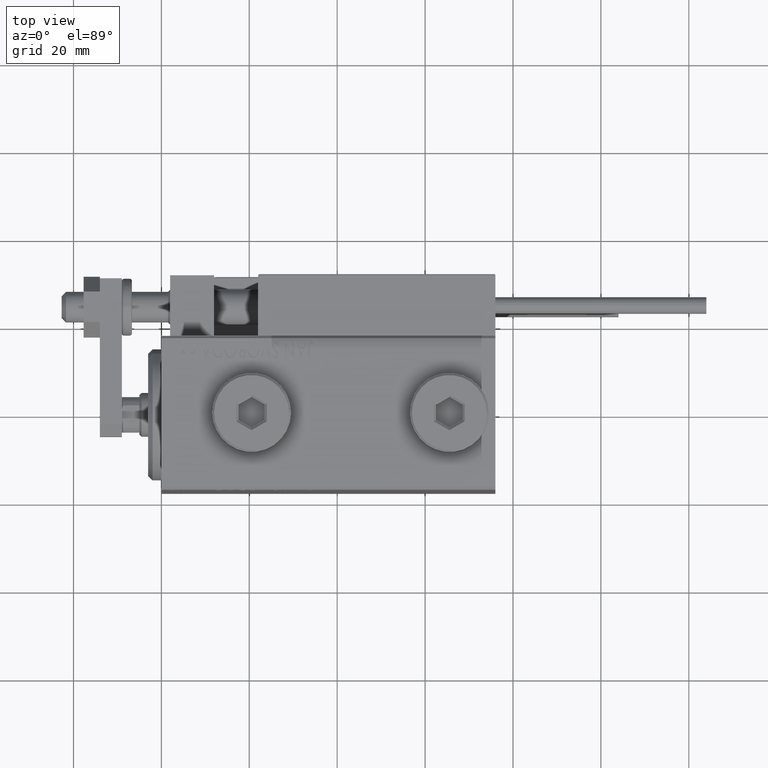
[diagram: clean part render]
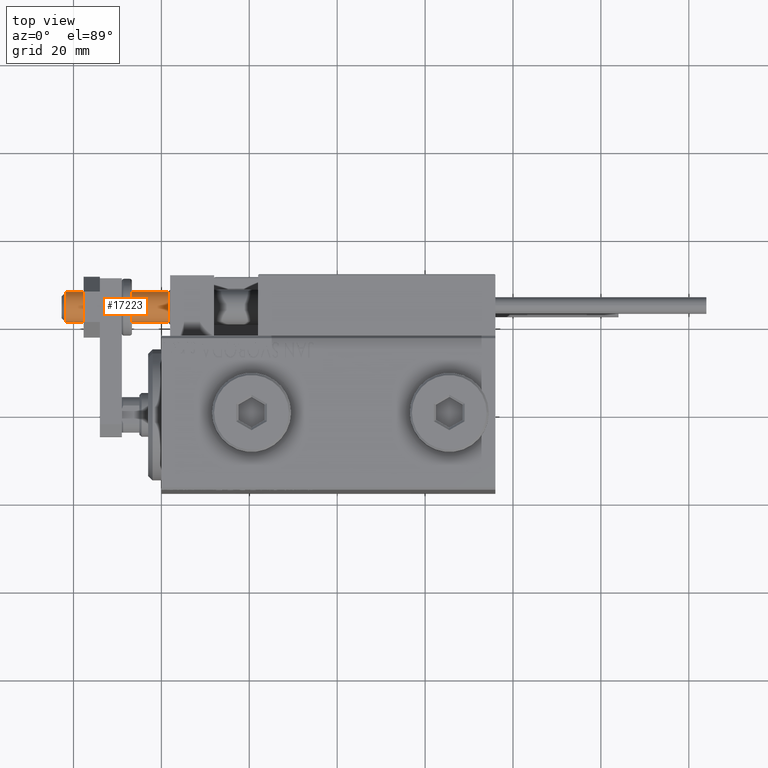
[diagram: same view with one face highlighted and labeled with its STEP entity id]
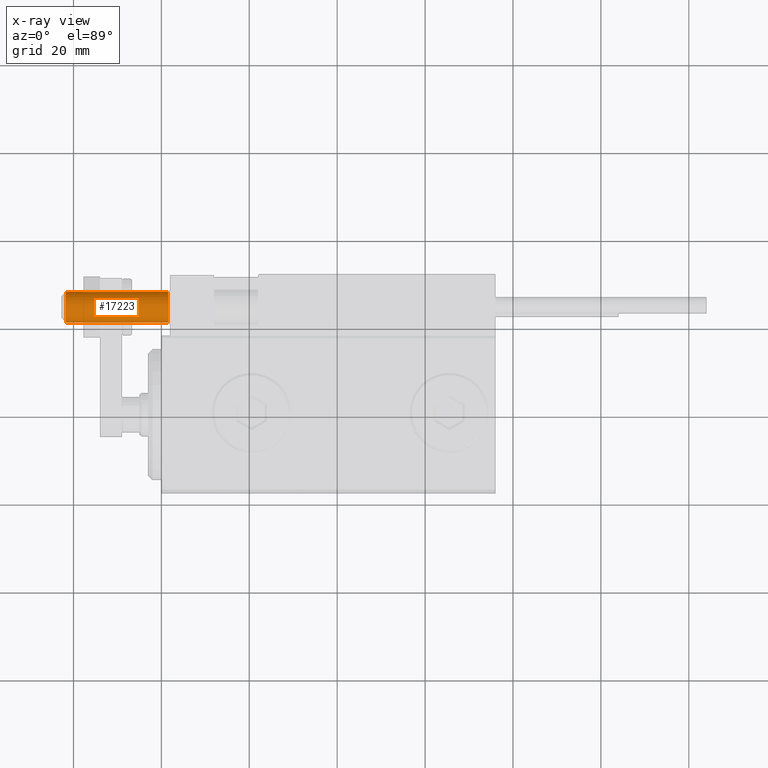
[diagram: x-ray of the same camera — body ghosted, the highlighted face saturated]
A machine part, top view. The second image highlights one B-rep face of the part: STEP entity #17223.
The next image is the same camera in x-ray: the body ghosted, the highlighted face saturated — about 0% of this face is hidden behind the body in this view.
In plain terms, the highlighted cylindrical surface (edge-blend (fillet) strip) has radius 3.5 mm, axis along (1, -0, -0).
Its self-contained STEP definition (entity closure, byte-faithful):
#826 = DIRECTION ( 'NONE',  ( 1.000000000000000000, 0.000000000000000000, 0.000000000000000000 ) ) ;
#1689 = EDGE_CURVE ( 'NONE', #29977, #46984, #15888, .T. ) ;
#1721 = DIRECTION ( 'NONE',  ( 1.000000000000000000, 0.000000000000000000, 0.000000000000000000 ) ) ;
#2655 = VECTOR ( 'NONE', #30963, 1000.000000000000000 ) ;
#5768 = CARTESIAN_POINT ( 'NONE',  ( 0.000000000000000000, 0.000000000000000000, 1.500000000000025535 ) ) ;
#8218 = ORIENTED_EDGE ( 'NONE', *, *, #33701, .T. ) ;
#10174 = CARTESIAN_POINT ( 'NONE',  ( -3.500000000000000000, 4.286263797015736595E-16, -21.69999999999998508 ) ) ;
#10534 = ORIENTED_EDGE ( 'NONE', *, *, #49981, .F. ) ;
#10717 = VERTEX_POINT ( 'NONE', #34318 ) ;
#11144 = CARTESIAN_POINT ( 'NONE',  ( -3.500000000000000000, 4.286263797015736595E-16, -22.69999999999999929 ) ) ;
#11249 = ORIENTED_EDGE ( 'NONE', *, *, #30158, .T. ) ;
#13487 = FACE_OUTER_BOUND ( 'NONE', #34974, .T. ) ;
#14676 = AXIS2_PLACEMENT_3D ( 'NONE', #33546, #45278, #1721 ) ;
#15184 = AXIS2_PLACEMENT_3D ( 'NONE', #25700, #36900, #37167 ) ;
#15888 = CIRCLE ( 'NONE', #36698, 3.500000000000000000 ) ;
#17112 = CARTESIAN_POINT ( 'NONE',  ( 3.500000000000000000, 0.000000000000000000, 1.500000000000025535 ) ) ;
#17223 = ADVANCED_FACE ( 'NONE', ( #13487 ), #29376, .T. ) ;
#19762 = LINE ( 'NONE', #11144, #2655 ) ;
#23145 = VECTOR ( 'NONE', #46516, 1000.000000000000000 ) ;
#24591 = VERTEX_POINT ( 'NONE', #10174 ) ;
#25700 = CARTESIAN_POINT ( 'NONE',  ( 0.000000000000000000, 0.000000000000000000, -21.69999999999998508 ) ) ;
#28384 = CIRCLE ( 'NONE', #15184, 3.500000000000000000 ) ;
#29376 = CYLINDRICAL_SURFACE ( 'NONE', #14676, 3.500000000000000000 ) ;
#29977 = VERTEX_POINT ( 'NONE', #39517 ) ;
#30158 = EDGE_CURVE ( 'NONE', #10717, #24591, #28384, .T. ) ;
#30619 = CARTESIAN_POINT ( 'NONE',  ( 3.500000000000000000, 0.000000000000000000, -22.69999999999999929 ) ) ;
#30963 = DIRECTION ( 'NONE',  ( -0.000000000000000000, -0.000000000000000000, 1.000000000000000000 ) ) ;
#33546 = CARTESIAN_POINT ( 'NONE',  ( 0.000000000000000000, 0.000000000000000000, -22.69999999999999929 ) ) ;
#33701 = EDGE_CURVE ( 'NONE', #24591, #29977, #19762, .T. ) ;
#34021 = LINE ( 'NONE', #30619, #23145 ) ;
#34318 = CARTESIAN_POINT ( 'NONE',  ( 3.500000000000000000, 0.000000000000000000, -21.69999999999998508 ) ) ;
#34764 = ORIENTED_EDGE ( 'NONE', *, *, #1689, .T. ) ;
#34974 = EDGE_LOOP ( 'NONE', ( #11249, #8218, #34764, #10534 ) ) ;
#36561 = DIRECTION ( 'NONE',  ( 0.000000000000000000, 0.000000000000000000, -1.000000000000000000 ) ) ;
#36698 = AXIS2_PLACEMENT_3D ( 'NONE', #5768, #36561, #826 ) ;
#36900 = DIRECTION ( 'NONE',  ( 0.000000000000000000, 0.000000000000000000, 1.000000000000000000 ) ) ;
#37167 = DIRECTION ( 'NONE',  ( -1.000000000000000000, 0.000000000000000000, 0.000000000000000000 ) ) ;
#39517 = CARTESIAN_POINT ( 'NONE',  ( -3.500000000000000000, 4.286263797015736595E-16, 1.500000000000025535 ) ) ;
#45278 = DIRECTION ( 'NONE',  ( -0.000000000000000000, -0.000000000000000000, 1.000000000000000000 ) ) ;
#46516 = DIRECTION ( 'NONE',  ( -0.000000000000000000, -0.000000000000000000, 1.000000000000000000 ) ) ;
#46984 = VERTEX_POINT ( 'NONE', #17112 ) ;
#49981 = EDGE_CURVE ( 'NONE', #10717, #46984, #34021, .T. ) ;